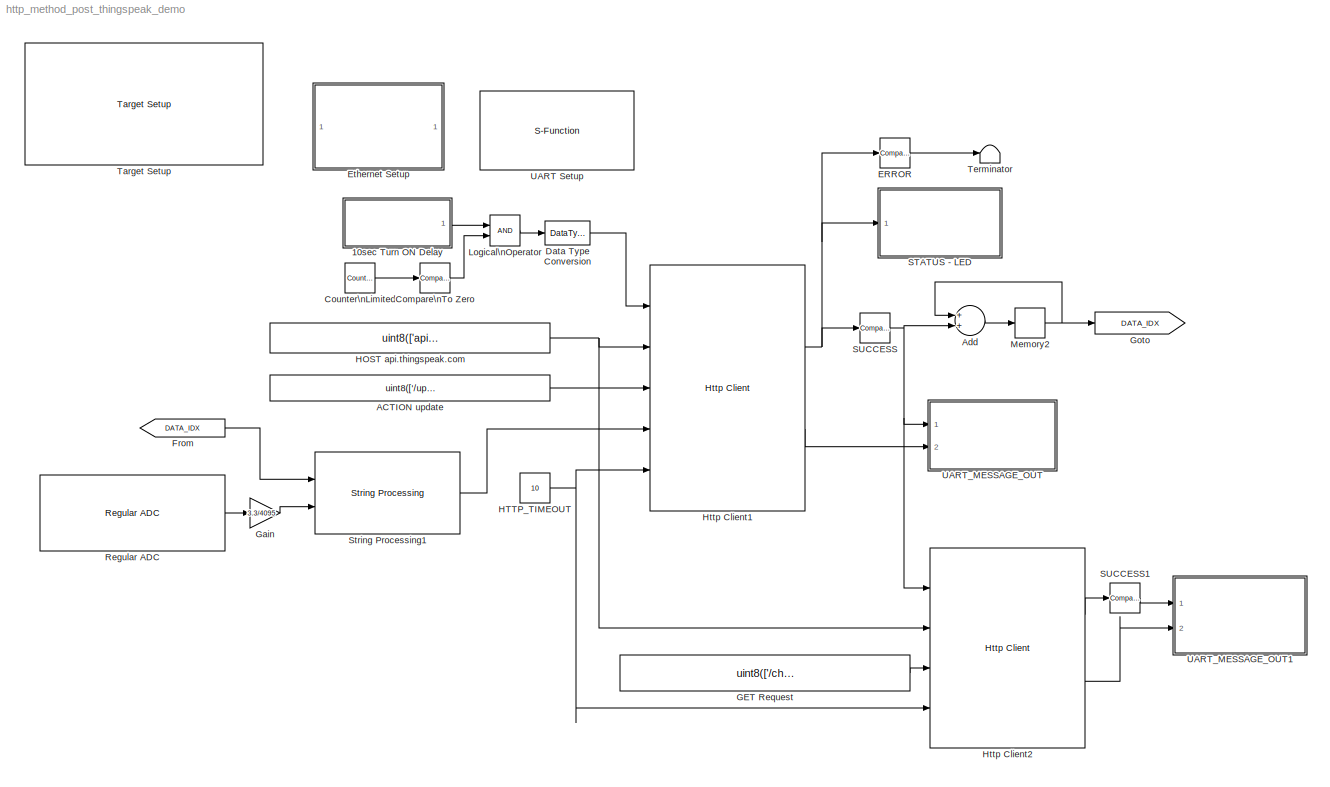
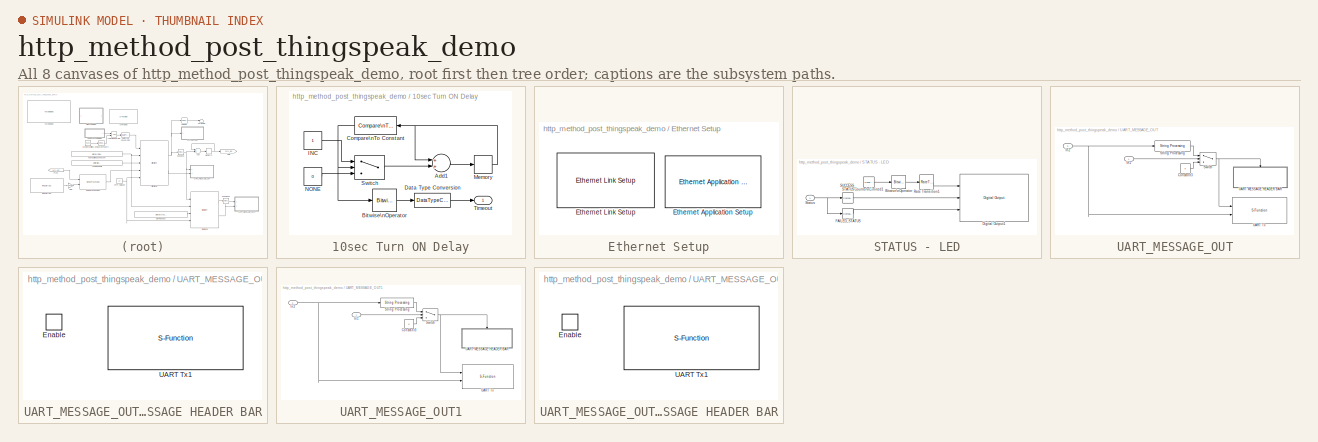
[diagram: thumbnail index - all 8 canvases of the model, root first then tree order]
MODEL http_method_post_thingspeak_demo
KIND model
CONFIG PreLoadFcn = waijung.modelPreload; % Required for working with Waijung Blockset. Do not remove.
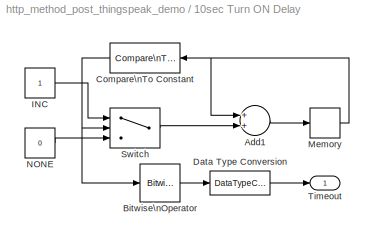
BLOCK [SubSystem] 10sec Turn ON Delay
  FunctionWithSeparateData = off
  MaskHideContents = off
  MinAlgLoopOccurrences = off
  Opaque = off
  Ports = [0, 1]
  PropExecContextOutsideSubsystem = off
  RTWSystemCode = Auto
  RequestExecContextInheritance = off
BLOCK [Sum] 10sec Turn ON Delay/Add1
  InputSameDT = off
  OutDataTypeMode = Inherit via internal rule
  OutDataTypeStr = Inherit: Inherit via internal rule
  Ports = [2, 1]
  SaturateOnIntegerOverflow = off
BLOCK [Reference] 10sec Turn ON Delay/Bitwise\nOperator  REF=simulink/Logic and Bit\nOperations/Bitwise\nOperator
  BitMask = bin2dec('11011001')
  BitMaskRealWorld = Stored Integer
  NumInputPorts = 1
  Ports = [1, 1]
  SourceBlock = simulink/Logic and Bit\nOperations/Bitwise\nOperator
  SourceType = Bitwise Operator
  UseBitMask = off
  logicop = NOT
BLOCK [Reference] 10sec Turn ON Delay/Compare\nTo Constant  REF=simulink/Logic and Bit\nOperations/Compare\nTo Constant
  FunctionWithSeparateData = off
  LogicOutDataTypeMode = uint8
  Ports = [1, 1]
  RTWMemSecDataConstants = Inherit from model
  RTWMemSecDataInternal = Inherit from model
  RTWMemSecDataParameters = Inherit from model
  RTWMemSecFuncExecute = Inherit from model
  RTWMemSecFuncInitTerm = Inherit from model
  ShowPortLabels = FromPortIcon
  SourceBlock = simulink/Logic and Bit\nOperations/Compare\nTo Constant
  SourceType = Compare To Constant
  SystemSampleTime = -1
  ZeroCross = on
  const = 1000
  relop = <
BLOCK [DataTypeConversion] 10sec Turn ON Delay/Data Type Conversion
  OutDataTypeMode = uint8
  OutDataTypeStr = uint8
  RndMeth = Floor
  SaturateOnIntegerOverflow = off
BLOCK [Constant] 10sec Turn ON Delay/INC
  OutDataTypeMode = int32
  OutDataTypeStr = int32
  SampleTime = -1
BLOCK [Memory] 10sec Turn ON Delay/Memory
  InheritSampleTime = on
  LinearizeAsDelay = on
  LinearizeMemory = on
BLOCK [Constant] 10sec Turn ON Delay/NONE
  OutDataTypeMode = int32
  OutDataTypeStr = int32
  SampleTime = -1
  Value = 0
BLOCK [Switch] 10sec Turn ON Delay/Switch
  Criteria = u2 ~= 0
  InputSameDT = off
  SaturateOnIntegerOverflow = off
BLOCK [Outport] 10sec Turn ON Delay/Timeout
  IconDisplay = Port number
BLOCK [Constant] ACTION update
  SampleTime = -1
  Value = uint8(['/update' char(0)])
BLOCK [Sum] Add
  InputSameDT = off
  OutDataTypeMode = Inherit via internal rule
  OutDataTypeStr = Inherit: Inherit via internal rule
  Ports = [2, 1]
  SaturateOnIntegerOverflow = off
BLOCK [Reference] Compare\nTo Zero  REF=simulink/Logic and Bit\nOperations/Compare\nTo Zero
  FunctionWithSeparateData = off
  LogicOutDataTypeMode = uint8
  Ports = [1, 1]
  RTWMemSecDataConstants = Inherit from model
  RTWMemSecDataInternal = Inherit from model
  RTWMemSecDataParameters = Inherit from model
  RTWMemSecFuncExecute = Inherit from model
  RTWMemSecFuncInitTerm = Inherit from model
  ShowPortLabels = FromPortIcon
  SourceBlock = simulink/Logic and Bit\nOperations/Compare\nTo Zero
  SourceType = Compare To Zero
  SystemSampleTime = -1
  ZeroCross = on
  relop = ==
BLOCK [Reference] Counter\nLimited  REF=simulink/Sources/Counter\nLimited
  FunctionWithSeparateData = off
  Ports = [0, 1]
  RTWMemSecDataConstants = Inherit from model
  RTWMemSecDataInternal = Inherit from model
  RTWMemSecDataParameters = Inherit from model
  RTWMemSecFuncExecute = Inherit from model
  RTWMemSecFuncInitTerm = Inherit from model
  ShowPortLabels = FromPortIcon
  SourceBlock = simulink/Sources/Counter\nLimited
  SourceType = Counter Limited
  SystemSampleTime = -1
  tsamp = -1
  uplimit = 499
BLOCK [DataTypeConversion] Data Type Conversion
  OutDataTypeMode = uint8
  OutDataTypeStr = uint8
  RndMeth = Floor
  SaturateOnIntegerOverflow = off
BLOCK [Reference] ERROR  REF=simulink/Logic and Bit\nOperations/Compare\nTo Constant
  FunctionWithSeparateData = off
  LogicOutDataTypeMode = uint8
  Ports = [1, 1]
  RTWMemSecDataConstants = Inherit from model
  RTWMemSecDataInternal = Inherit from model
  RTWMemSecDataParameters = Inherit from model
  RTWMemSecFuncExecute = Inherit from model
  RTWMemSecFuncInitTerm = Inherit from model
  ShowPortLabels = FromPortIcon
  SourceBlock = simulink/Logic and Bit\nOperations/Compare\nTo Constant
  SourceType = Compare To Constant
  SystemSampleTime = -1
  ZeroCross = on
  const = 4
  relop = >=
BLOCK [SubSystem] Ethernet Setup
  FunctionWithSeparateData = off
  MaskHideContents = off
  MinAlgLoopOccurrences = off
  Opaque = off
  Ports = []
  PropExecContextOutsideSubsystem = off
  RTWSystemCode = Auto
  RequestExecContextInheritance = off
BLOCK [Reference] Ethernet Setup/Ethernet Application Setup  REF=waijung_webserver/Ethernet Application Setup
  Ports = []
  SourceBlock = waijung_webserver/Ethernet Application Setup
  SourceType = waijung_ethernet_app
  blockid = EthernetSetupEthernetApplicationSetup
  compat = 0
  conf = Setup
  dhcp = off
  gateway = 192.168.1.1
  inputportlabel = {}
  inputporttype = []
  inputportwidth = []
  ipaddress = 192.168.1.42
  macaddress = 02-00-00-00-00-00
  netmask = 255.255.255.0
  optionstring = [\"Dummy\",\"192\",\"168\",\"1\",\"42\",\"255\",\"255\",\"255\",\"0\",\"192\",\"168\",\"1\",\"1\",\"02\",\"00\",\"00\",\"00\",\"00\",\"00\",\"off\",\"250\"]
  outputportlabel = {}
  outputporttype = []
  outputportwidth = []
  portpinstr = 0
  sampletime = -1
  timerscaler = 250
BLOCK [Reference] Ethernet Setup/Ethernet Link Setup  REF=waijung_webserver/Ethernet Link Setup
  Ports = []
  SourceBlock = waijung_webserver/Ethernet Link Setup
  SourceType = waijung_ethernet_inf
  blockid = EthernetSetupEthernetLinkSetup
  chipaddress = 0
  compat = 0
  conf = Setup
  inputportlabel = {}
  inputporttype = []
  inputportwidth = []
  interfacepin = Manual
  optionstring = [\"xxx\",\"on\",\"on\",\"on\",\"off\",\"off\",\"off\",\"on\",\"off\",\"off\",\"off\",\"on\",\"on\",\"off\",\"on\",\"off\",\"off\",\"off\",\"off\",\"off\",\"on\",\"on\",\"on\",\"on\",\"off\",\"off\",\"on\",\"on\",\"A\",\"0\",\"A\",\"1\",\"A\",\"2\",\"A\",\"3\",\"A\",\"7\",\"B\",\"0\",\"B\",\"1\",\"N\",\"ot used\",\"E\",\"2\",\"B\",\"10\",\"G\",\"11\",\"G\",\"13\",\"B\",\"13\",\"C\",\"1\",\"C\",\"2\...<+53ch>
  outputportlabel = {}
  outputporttype = []
  outputportwidth = []
  pin_col = A3
  pin_crs = A0
  pin_dv = A7
  pin_mdc = C1
  pin_mdio = A2
  pin_pps = Not used
  pin_rxclk = A1
  pin_rxd0 = C4
  pin_rxd1 = C5
  pin_rxd2 = B0
  pin_rxd3 = B1
  pin_rxer = B10
  pin_txclk = C3
  pin_txd0 = G13
  pin_txd1 = B13
  pin_txd2 = C2
  pin_txd3 = E2
  pin_txen = G11
  portpinstr = A1,A2,A7,G11,G13,B13,C1,C4,C5,
  sampletime = -1
  wj_interfacetype = RMII
BLOCK [From] From
  GotoTag = DATA_IDX
BLOCK [Constant] GET Request
  SampleTime = -1
  Value = uint8(['/channels/236170/feeds.csv?results=5' char(0)])
BLOCK [Gain] Gain
  Gain = 3.3/4095
  OutDataTypeMode = Inherit via internal rule
  OutDataTypeStr = Inherit: Inherit via internal rule
  ParamDataTypeStr = Inherit: Inherit via internal rule
  ParameterDataTypeMode = Inherit via internal rule
  SaturateOnIntegerOverflow = off
BLOCK [Goto] Goto
  GotoTag = DATA_IDX
  TagVisibility = local
BLOCK [Constant] HOST api.thingspeak.com
  SampleTime = -1
  Value = uint8(['api.thingspeak.com' char(0)])
BLOCK [Constant] HTTP_TIMEOUT
  OutDataTypeMode = uint32
  OutDataTypeStr = uint32
  SampleTime = -1
  Value = 10
BLOCK [Reference] Http Client1  REF=waijung_http_client_lib/Http Client
  Ports = [5, 2]
  SourceBlock = waijung_http_client_lib/Http Client
  SourceType = waijung_http_client
  beginpattern = ''
  blockid = HttpClient1
  compat = 0
  conf = HttpPOST
  contenttype = 'application/x-www-form-urlencoded'
  httpresponse = on
  httpresponsesize = 1024
  inputportlabel = {'Trig','Host','Action','Content','Timeout(sec)'}
  inputporttype = [-1 3 3 3 7]
  inputportwidth = [1 -1 -1 -1 1]
  optionstring = [\"on\",\"application/x-www-form-urlencoded\"]
  outputportlabel = {'Status','Response'}
  outputporttype = [3 3]
  outputportwidth = [1 1024]
  portpinstr = 0
  sampletime = 0.01
  stringparam1 = 0
  stringparam2 = 0
  terminatorpattern = ''
BLOCK [Reference] Http Client2  REF=waijung_http_client_lib/Http Client
  Ports = [4, 2]
  SourceBlock = waijung_http_client_lib/Http Client
  SourceType = waijung_http_client
  beginpattern = ''
  blockid = HttpClient2
  compat = 0
  conf = HttpGET
  contenttype = 'application/x-www-form-urlencoded'
  httpresponse = on
  httpresponsesize = 1024
  inputportlabel = {'Trig','Host','Request','Timeout(sec)'}
  inputporttype = [-1 3 3 7]
  inputportwidth = [1 -1 -1 1]
  optionstring = [\"on\",\"application/x-www-form-urlencoded\"]
  outputportlabel = {'Status','Response'}
  outputporttype = [3 3]
  outputportwidth = [1 1024]
  portpinstr = 0
  sampletime = 0.01
  stringparam1 = 0
  stringparam2 = 0
  terminatorpattern = ''
BLOCK [Logic] Logical\nOperator
  AllPortsSameDT = off
  OutDataTypeMode = boolean
  OutDataTypeStr = boolean
  Ports = [2, 1]
BLOCK [Memory] Memory2
  InheritSampleTime = on
  LinearizeAsDelay = on
  LinearizeMemory = on
BLOCK [Reference] Regular ADC  REF=stm32f4_adc_lib/Regular ADC
  Ports = [0, 1]
  SourceBlock = stm32f4_adc_lib/Regular ADC
  SourceType = stm32f4_regular_adc
  adcmodule = 1
  blockid = RegularADC
  chsamplingtime = Auto
  chsamplingtimestr = ADC_SampleTime_480Cycles
  cinputportlabel = 0
  coutputportlabel = Out1, Out2
  enablecustomportlabel = off
  outputdatatype = Single
  pinstr = GPIO_Pin_9
  prescaler = 2
  prescalerstr = ADC_Prescaler_Div2
  read_an0 = off
  read_an1 = off
  read_an10 = off
  read_an11 = off
  read_an12 = off
  read_an13 = off
  read_an14 = off
  read_an15 = off
  read_an16 = off
  read_an17 = off
  read_an18 = off
  read_an2 = off
  read_an3 = off
  read_an4 = off
  read_an5 = off
  read_an6 = off
  read_an7 = off
  read_an8 = off
  read_an9 = on
  sampletime = -1
  usedpinarray = [0  0  0  0  0  0  0  0  0  1  0  0  0  0  0  0  0  0  0]
  usedpinidarray = [1]
  usedpinidcount = 1
  usedportidarray = [1]
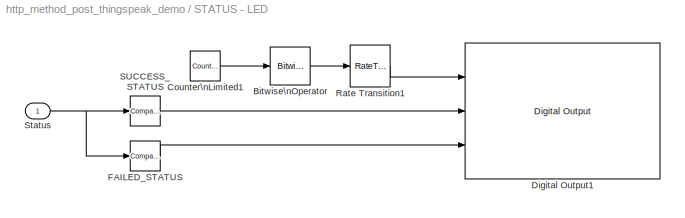
BLOCK [SubSystem] STATUS - LED
  FunctionWithSeparateData = off
  MaskHideContents = off
  MinAlgLoopOccurrences = off
  Opaque = off
  Ports = [1]
  PropExecContextOutsideSubsystem = off
  RTWSystemCode = Auto
  RequestExecContextInheritance = off
BLOCK [Reference] STATUS - LED/Bitwise\nOperator  REF=simulink/Logic and Bit\nOperations/Bitwise\nOperator
  BitMask = 1
  BitMaskRealWorld = Stored Integer
  NumInputPorts = 1
  Ports = [1, 1]
  SourceBlock = simulink/Logic and Bit\nOperations/Bitwise\nOperator
  SourceType = Bitwise Operator
  UseBitMask = on
  logicop = AND
BLOCK [Reference] STATUS - LED/Counter\nLimited1  REF=simulink/Sources/Counter\nLimited
  FunctionWithSeparateData = off
  Ports = [0, 1]
  RTWMemSecDataConstants = Inherit from model
  RTWMemSecDataInternal = Inherit from model
  RTWMemSecDataParameters = Inherit from model
  RTWMemSecFuncExecute = Inherit from model
  RTWMemSecFuncInitTerm = Inherit from model
  ShowPortLabels = FromPortIcon
  SourceBlock = simulink/Sources/Counter\nLimited
  SourceType = Counter Limited
  SystemSampleTime = -1
  tsamp = 0.1
  uplimit = 99
BLOCK [Reference] STATUS - LED/Digital Output1  REF=stm32f4_io_lib/Digital Output
  Ports = [3]
  SourceBlock = stm32f4_io_lib/Digital Output
  SourceType = stm32f4_digital_output
  bitbandingstr = \n#define STATUSLEDDigitalOutput1_B0 Peripheral_BB(GPIOB->ODR, 0)  /* Output pin */\n#define STATUSLEDDigitalOutput1_B7 Peripheral_BB(GPIOB->ODR, 7)  /* Output pin */\n#define STATUSLEDDigitalOutput1_B14 Peripheral_BB(GPIOB->ODR, 14)  /* Output pin */
  blockid = STATUSLEDDigitalOutput1
  cinputportlabel = In1, In2
  coutputportlabel = 0
  enablecustomportlabel = off
  globalinit = off
  pinstr = GPIO_Pin_0 | GPIO_Pin_7 | GPIO_Pin_14
  port = B
  porttype = Push Pull
  porttypestr = PP
  sampletime = -1
  sampletimestr = 0.01
  speed = 100
  use_bitband = on
  use_pin0 = on
  use_pin1 = off
  use_pin10 = off
  use_pin11 = off
  use_pin12 = off
  use_pin13 = off
  use_pin14 = on
  use_pin15 = off
  use_pin2 = off
  use_pin3 = off
  use_pin4 = off
  use_pin5 = off
  use_pin6 = off
  use_pin7 = on
  use_pin8 = off
  use_pin9 = off
  usedpinarray = [1  0  0  0  0  0  0  1  0  0  0  0  0  0  1  0]
BLOCK [Reference] STATUS - LED/FAILED_STATUS  REF=simulink/Logic and Bit\nOperations/Compare\nTo Constant
  FunctionWithSeparateData = off
  LogicOutDataTypeMode = uint8
  Ports = [1, 1]
  RTWMemSecDataConstants = Inherit from model
  RTWMemSecDataInternal = Inherit from model
  RTWMemSecDataParameters = Inherit from model
  RTWMemSecFuncExecute = Inherit from model
  RTWMemSecFuncInitTerm = Inherit from model
  ShowPortLabels = FromPortIcon
  SourceBlock = simulink/Logic and Bit\nOperations/Compare\nTo Constant
  SourceType = Compare To Constant
  SystemSampleTime = -1
  ZeroCross = on
  const = 3
  relop = >
BLOCK [RateTransition] STATUS - LED/Rate Transition1
BLOCK [Reference] STATUS - LED/SUCCESS_STATUS  REF=simulink/Logic and Bit\nOperations/Compare\nTo Constant
  FunctionWithSeparateData = off
  LogicOutDataTypeMode = uint8
  Ports = [1, 1]
  RTWMemSecDataConstants = Inherit from model
  RTWMemSecDataInternal = Inherit from model
  RTWMemSecDataParameters = Inherit from model
  RTWMemSecFuncExecute = Inherit from model
  RTWMemSecFuncInitTerm = Inherit from model
  ShowPortLabels = FromPortIcon
  SourceBlock = simulink/Logic and Bit\nOperations/Compare\nTo Constant
  SourceType = Compare To Constant
  SystemSampleTime = -1
  ZeroCross = on
  const = 3
  relop = ==
BLOCK [Inport] STATUS - LED/Status
  IconDisplay = Port number
BLOCK [Reference] SUCCESS  REF=simulink/Logic and Bit\nOperations/Compare\nTo Constant
  FunctionWithSeparateData = off
  LogicOutDataTypeMode = uint8
  Ports = [1, 1]
  RTWMemSecDataConstants = Inherit from model
  RTWMemSecDataInternal = Inherit from model
  RTWMemSecDataParameters = Inherit from model
  RTWMemSecFuncExecute = Inherit from model
  RTWMemSecFuncInitTerm = Inherit from model
  ShowPortLabels = FromPortIcon
  SourceBlock = simulink/Logic and Bit\nOperations/Compare\nTo Constant
  SourceType = Compare To Constant
  SystemSampleTime = -1
  ZeroCross = on
  const = 3
  relop = ==
BLOCK [Reference] SUCCESS1  REF=simulink/Logic and Bit\nOperations/Compare\nTo Constant
  FunctionWithSeparateData = off
  LogicOutDataTypeMode = uint8
  Ports = [1, 1]
  RTWMemSecDataConstants = Inherit from model
  RTWMemSecDataInternal = Inherit from model
  RTWMemSecDataParameters = Inherit from model
  RTWMemSecFuncExecute = Inherit from model
  RTWMemSecFuncInitTerm = Inherit from model
  ShowPortLabels = FromPortIcon
  SourceBlock = simulink/Logic and Bit\nOperations/Compare\nTo Constant
  SourceType = Compare To Constant
  SystemSampleTime = -1
  ZeroCross = on
  const = 3
  relop = ==
BLOCK [Reference] String Processing1  REF=waijung_string_manipulate/String Processing
  Ports = [2, 1]
  SourceBlock = waijung_string_manipulate/String Processing
  SourceType = waijung_string_processing_callback
  begindelimiter = ''
  blockid = StringProcessing1
  buffersize = 512
  compat = 0
  conf = processing
  datatypestring = [\"uint32_t\",\"float\"]
  enablestatus = off
  enddelimiter = ''
  inputportlabel = {'%u','%f'}
  inputporttype = [-1 -1]
  inputportwidth = [1 1]
  optionstring = []
  outputportlabel = {'Output'}
  outputporttype = [3]
  outputportwidth = [512]
  portpinstr = 0
  sampletime = -1
  stringformat = 'api_key=LLYHIMHACKG50HOH&field1=%u&field2=%1.2f'
  stringfunction = sprintf
BLOCK [Reference] Target Setup  REF=stm32f4_device_config_lib/Target Setup
  Ports = []
  Priority = 100
  SourceBlock = stm32f4_device_config_lib/Target Setup
  SourceType = stm32f4_target_setup
  assemblercontrolstr = $(patsubst %, -I%, .) -mcpu=cortex-m4 -mthumb -mthumb-interwork -mfloat-abi=hard -mfpu=fpv4-sp-d16 -ffast-math -Wall -Wextra -Ofast -Wa,-amhls=$(<:.s=.lst) -D__STACK_SIZE=$(STACK_SIZE) -D__HEAP_SIZE=$(HEAP_SIZE)
  blockid = TargetSetup
  clockconfig = HSEOSC-8MHz
  compiler = GNU ARM
  compilercontrolstr = $(patsubst %, -I%, .) -mcpu=cortex-m4 -mthumb -mthumb-interwork -mfloat-abi=hard -mfpu=fpv4-sp-d16 -ffast-math -Wall -Wextra -Ofast
  editctrlstr = on
  enableautocompiledownload = on
  execprofile = None
  flashlength = 2048k
  flashorigin = 0x8000000
  fullchiperase = off
  hclk = 180000000
  heapsize = 0x2000
  hseval = 8000000
  lastprofileruart = 3
  linkercontrolstr = -T$(LD_SCRIPT) -g -Wl,-Map=$(MAP),--cref,--no-warn-mismatch -mcpu=cortex-m4 -mthumb -mthumb-interwork -mfloat-abi=hard -mfpu=fpv4-sp-d16 -specs=nosys.specs
  manualsetsampletime = off
  mcu = STM32F429ZI (LQFP144)
  mcustr = STM32F429ZI
  previous_compiler = GNU ARM
  profilerbaud = 500000
  profilerinitstr = 0.01,180000000,1800000,500000,0
  profilertxpin = D8
  profileruart = 3
  programmerinterface = ST-Link
  ramlength = 192k
  ramorigin = 0x20000000
  runafterdownload = on
  sampletime = 0.01
  showmemoryconfiguration = off
  stacksize = 0x2000
  system_stm32f4xx_c_path = <path>
  systickreloadvalue = 1800000
  useextram = off
BLOCK [Terminator] Terminator
BLOCK [S-Function] UART Setup
  EnableBusSupport = off
  FunctionName = stm32f4_usart
  MaskCallbackString = stm32f4_usart_callback('configuration');|stm32f4_usart_callback('uartmodule');|stm32f4_usart_callback('baudrate');||||||stm32f4_usart_callback('flowcontrol');|||stm32f4_usart_callback('advanceoptions');|||stm32f4_usart_callback('transfer');|stm32f4_usart_callback('packetmode');|stm32f4_usart_callback('binheader');|stm32f4_usart_callback('binterminator');|stm32f4_usart_callback('porttype');|stm32f4...<+572ch>  <repeated x5 — deduplicated; at blocks: UART Setup, UART Tx1, UART Tx>
  MaskDescription = Default STM32F4DISCOVERY + aMG F4 Connect 2 + aMG USB Converter N2 settings use\n\nUSART3, Tx D8, Rx D9 and USB Serial Converter A.
  MaskDisplay = text(0.5, 0.5, 'Module: USART3_Setup\\nBaud (Bps): 115200\\nDMA Buffer: 1024/512\\nTx/Rx Pin: D8/D9','ver','middle','hor','center');
  MaskEnableString = on,on,on,on,on,on,on,on,on,off,off,on,on,on,on,on,on,on,on,on,on,on,on,on,on,on,on,on,on,on,on,on,on,on,on,on,on,on,on,off,off,on,on
  MaskHelp = web(fullfile(waijungdocroot,'stm32f4_usart_setup.htm'), '-browser')
  MaskIconFrame = on
  MaskIconOpaque = on
  MaskIconRotate = none
  MaskIconUnits = normalized
  MaskInitialization = stm32f4_usart_callback('init');
  MaskPortRotate = default
  MaskPromptString = Configuration|UART Module|Baud rate (bps)|Data bits|Parity|Stop bit|Tx Pin|Rx Pin|Hardware flow control|HW Flow control, CTS Pin|HW Flow control, RTS Pin|Advance options|Rx buffer size (bytes)|Tx buffer size (bytes)|Transfer|Packet mode|Binary header (example: '7E 7E')|Binary terminator (example: '03 03')|Number of data port, type DOUBLE|Number of data port, type SINGLE|Number of data port, type I...<+457ch>  <repeated x5 — deduplicated; at blocks: UART Setup, UART Tx1, UART Tx>
  MaskSelfModifiable = on
  MaskStyleString = popup(Setup|Tx|Rx),popup(1|2|3|4|5|6),edit,popup(8),popup(No|Odd|Even),popup(0.5|1|1.5|2),popup(Not used|B10|C10|D8),popup(Not used|B11|C11|D9),popup(None|RTS|CTS|RTS/CTS),popup(Not used|B13|D11),popup(Not used|B14|D12),checkbox,popup(16|32|64|128|256|512|1024|2048),popup(16|32|64|128|256|512|1024|2048),popup(Blocking|Non-Blocking),popup(Ascii|Binary|String Buffer),edit,edit,edit,edit,edit,edit,ed...<+309ch>
  MaskTabNameString = ,,,,,,,,,,,,,,,,,,,,,,,,,,,,,,,,,,,,,,,,,,
  MaskToolTipString = on,on,on,on,on,on,on,on,on,on,on,on,on,on,on,on,on,on,on,on,on,on,on,on,on,on,on,on,on,on,on,on,on,on,on,on,on,on,on,on,on,on,on
  MaskTunableValueString = off,off,off,off,off,off,off,off,off,off,off,off,off,off,off,off,off,off,off,off,off,off,off,off,off,off,off,off,off,off,off,off,off,off,off,off,off,off,off,off,off,off,off
  MaskType = stm32f4_usart
  MaskValueString = Setup|3|115200|8|No|1|D8|D9|None|Not used|Not used|on|512|1024|Blocking|Ascii|'7E 7E'|'03 03'|1|0|1|0|0|0|0|0|'%d,%f'|CR (0x0D - \"\\\\\\\\r\")|CR (0x0D - \"\\\\\\\\r\")|<empty>||[0]|[0]|[0]|[0]|0|''|[0]|-1|0.01|UARTSetup|[ \"dummy\", \"1\", \"D\", \"8\", \"1\", \"D\", \"9\", \"0\", \"*\", \"*\", \"0\", \"*\", \"*\", \"1\", \"4\", \"3\", \"1\", \"4\", \"1\", \"1024\", \"512\", \"1\", \"3\", \"1152...<+51ch>
  MaskVarAliasString = ,,,,,,,,,,,,,,,,,,,,,,,,,,,,,,,,,,,,,,,,,,
  MaskVariables = configuration=&1;uartmodule=&2;baudrate=@3;databits=@4;parity=&5;stopbit=&6;remaptxpin=&7;remaprxpin=&8;flowcontrol=&9;remapctspin=&10;remaprtspin=&11;advanceoptions=@12;rxbuffersize=@13;txbuffersize=@14;transfer=&15;packetmode=&16;binheader=&17;binterminator=&18;porttype_double=@19;porttype_single=@20;porttype_int8=@21;porttype_uint8=@22;porttype_int16=@23;porttype_uint16=@24;porttype_int32=@25;p...<+306ch>  <repeated x5 — deduplicated; at blocks: UART Setup, UART Tx1, UART Tx>
  MaskVisibilityString = off,on,on,on,on,on,on,on,on,on,on,on,on,on,off,off,off,off,off,off,off,off,off,off,off,off,off,off,off,off,off,off,off,off,off,off,off,off,off,off,off,off,off
  Parameters = configuration,uartmodule,transfer,baudrate,inputtype,outputtype,confstr,binheaderarray,binterminatorarray,asciiheader,asciiterminator,bindatalength,packetmode,varname,sampletime,sampletimestr,blockid  <repeated x5 — deduplicated; at blocks: UART Setup, UART Tx1, UART Tx>
  Ports = []
  Priority = 1
BLOCK [SubSystem] UART_MESSAGE_OUT
  FunctionWithSeparateData = off
  MaskHideContents = off
  MinAlgLoopOccurrences = off
  Opaque = off
  Ports = [2]
  PropExecContextOutsideSubsystem = off
  RTWSystemCode = Auto
  RequestExecContextInheritance = off
BLOCK [Constant] UART_MESSAGE_OUT/Constant3
  OutDataTypeMode = uint16
  OutDataTypeStr = uint16
  SampleTime = -1
  Value = 0
BLOCK [Inport] UART_MESSAGE_OUT/In1
  IconDisplay = Port number
BLOCK [Inport] UART_MESSAGE_OUT/In2
  IconDisplay = Port number
  Port = 2
BLOCK [Reference] UART_MESSAGE_OUT/String Processing  REF=waijung_string_manipulate/String Processing
  Ports = [1, 1]
  SourceBlock = waijung_string_manipulate/String Processing
  SourceType = waijung_string_processing_callback
  begindelimiter = ''
  blockid = UART_MESSAGE_OUTStringProcessing
  buffersize = 28
  compat = 0
  conf = processing
  datatypestring = []
  enablestatus = off
  enddelimiter = ''
  inputportlabel = {'Input'}
  inputporttype = [3]
  inputportwidth = [-1]
  optionstring = []
  outputportlabel = {'Length'}
  outputporttype = [7]
  outputportwidth = [1]
  portpinstr = 0
  sampletime = -1
  stringformat = 'value=%d,%f'
  stringfunction = strlen
BLOCK [Switch] UART_MESSAGE_OUT/Switch
  Criteria = u2 ~= 0
  InputSameDT = off
  SaturateOnIntegerOverflow = off
BLOCK [SubSystem] UART_MESSAGE_OUT/UART MESSAGE HEADER BAR
  FunctionWithSeparateData = off
  MaskHideContents = off
  MinAlgLoopOccurrences = off
  Opaque = off
  Ports = [0, 0, 1]
  PropExecContextOutsideSubsystem = off
  RTWSystemCode = Auto
  RequestExecContextInheritance = off
BLOCK [EnablePort] UART_MESSAGE_OUT/UART MESSAGE HEADER BAR/Enable
  Ports = []
BLOCK [S-Function] UART_MESSAGE_OUT/UART MESSAGE HEADER BAR/UART Tx1
  EnableBusSupport = off
  FunctionName = stm32f4_usart
  MaskDescription = Data type for Ascii format\n%u, %i, %d, %o, %x: uint32\n%e, %g, %f: single\n%c: int8
  MaskDisplay = text(0.95, 0.5, 'Module: USART3_Tx\\nPacket: Ascii\\nTransfer: Blocking\\nTs (sec): 0.01','ver','middle','hor','right');
  MaskEnableString = on,on,on,on,on,on,on,on,on,off,off,on,on,on,on,on,on,on,on,on,on,on,on,on,on,on,on,on,on,on,on,on,on,on,on,on,on,on,on,off,off,on,on
  MaskHelp = web(fullfile(waijungdocroot,'stm32f4_usart_tx.htm'), '-browser')
  MaskIconFrame = on
  MaskIconOpaque = on
  MaskIconRotate = none
  MaskIconUnits = normalized
  MaskInitialization = stm32f4_usart_callback('init');
  MaskPortRotate = default
  MaskSelfModifiable = on
  MaskStyleString = popup(Setup|Tx|Rx),popup(1|2|3|4|5|6),edit,popup(8),popup(No|Odd|Even),popup(0.5|1|1.5|2),popup(Not used|A9|B6),popup(Not used|A10|B7),popup(None|RTS|CTS|RTS/CTS),popup(Not used|A11),popup(Not used|A12),checkbox,popup(16|32|64|128|256|512|1024|2048),popup(16|32|64|128|256|512|1024|2048),popup(Blocking|Non-Blocking),popup(Ascii|Binary|Binary Vector|String Buffer|Raw Buffer),edit,edit,edit,edit,edit...<+317ch>  <repeated x4 — deduplicated; at blocks: UART Tx1, UART Tx>
  MaskTabNameString = ,,,,,,,,,,,,,,,,,,,,,,,,,,,,,,,,,,,,,,,,,,
  MaskToolTipString = on,on,on,on,on,on,on,on,on,on,on,on,on,on,on,on,on,on,on,on,on,on,on,on,on,on,on,on,on,on,on,on,on,on,on,on,on,on,on,on,on,on,on
  MaskTunableValueString = off,off,off,off,off,off,off,off,off,off,off,off,off,off,off,off,off,off,off,off,off,off,off,off,off,off,off,off,off,off,off,off,off,off,off,off,off,off,off,off,off,off,off
  MaskType = stm32f4_usart
  MaskValueString = Tx|3|115200|8|No|1|Not used|Not used|None|Not used|Not used|off|512|512|Blocking|Ascii|'7E 7E'|'03 03'|1|0|1|0|0|0|0|0|'\\r\\n=========== POST ===========\\r\\n'|CR (0x0D - \"\\\\\\\\r\")|CR (0x0D - \"\\\\\\\\r\")|<empty>||[0 ]|[0]|[0]|[0]|0|'\\r\\n=========== POST ===========<path>'|[2 13 10]|-1|0.01|UART_MESSAGE_OUTUARTMESSAGEHEADERBARUARTTx1|[ \"dummy\", \"0\", \"*\", \"*\", \"0\", \"*\",...<+181ch>
  MaskVarAliasString = ,,,,,,,,,,,,,,,,,,,,,,,,,,,,,,,,,,,,,,,,,,
  MaskVisibilityString = off,on,off,off,off,off,off,off,off,off,off,off,off,off,on,on,off,off,off,off,off,off,off,off,off,off,on,off,on,off,off,off,off,off,off,off,off,off,on,off,off,off,off
  Ports = []
  Priority = 0
BLOCK [S-Function] UART_MESSAGE_OUT/UART Tx
  EnableBusSupport = off
  FunctionName = stm32f4_usart
  MaskDescription = Data type for Ascii format\n%u, %i, %d, %o, %x: uint32\n%e, %g, %f: single\n%c: int8
  MaskDisplay = text(0.95, 0.5, 'Module: USART3_Tx\\nPacket: Raw Buffer\\nTransfer: Blocking\\nTs (sec): 0.01','ver','middle','hor','right'); port_label('input', 1,'tx_len'); port_label('input', 2,'uint8(1024)');
  MaskEnableString = on,on,on,on,on,on,on,on,on,off,off,on,on,on,on,on,on,on,on,on,on,on,on,on,on,on,on,on,on,on,on,on,on,on,on,on,on,on,on,off,off,on,on
  MaskHelp = web(fullfile(waijungdocroot,'stm32f4_usart_tx.htm'), '-browser')
  MaskIconFrame = on
  MaskIconOpaque = on
  MaskIconRotate = none
  MaskIconUnits = normalized
  MaskInitialization = stm32f4_usart_callback('init');
  MaskPortRotate = default
  MaskSelfModifiable = on
  MaskTabNameString = ,,,,,,,,,,,,,,,,,,,,,,,,,,,,,,,,,,,,,,,,,,
  MaskToolTipString = on,on,on,on,on,on,on,on,on,on,on,on,on,on,on,on,on,on,on,on,on,on,on,on,on,on,on,on,on,on,on,on,on,on,on,on,on,on,on,on,on,on,on
  MaskTunableValueString = off,off,off,off,off,off,off,off,off,off,off,off,off,off,off,off,off,off,off,off,off,off,off,off,off,off,off,off,off,off,off,off,off,off,off,off,off,off,off,off,off,off,off
  MaskType = stm32f4_usart
  MaskValueString = Tx|3|115200|8|No|1|Not used|Not used|None|Not used|Not used|off|512|512|Blocking|Raw Buffer|'7E 7E'|'03 03'|1|0|1|0|0|0|0|0|'value=%d,%f'|CR (0x0D - \"\\\\\\\\r\")|CR (0x0D - \"\\\\\\\\r\")|<empty>||[2  7 262147]|[0]|[0]|[0]|1024|'value=%d,%f\\r\\n'|[2 13 10]|-1|0.01|UART_MESSAGE_OUTUARTTx|[ \"dummy\", \"0\", \"*\", \"*\", \"0\", \"*\", \"*\", \"0\", \"*\", \"*\", \"0\", \"*\", \"*\", \"1\", \"4\"...<+119ch>
  MaskVarAliasString = ,,,,,,,,,,,,,,,,,,,,,,,,,,,,,,,,,,,,,,,,,,
  MaskVisibilityString = off,on,off,off,off,off,off,off,off,off,off,off,off,off,on,on,off,off,off,off,off,off,off,off,off,off,off,off,off,off,off,off,off,off,off,off,off,off,on,off,off,off,off
  Ports = [2]
  Priority = 1
BLOCK [SubSystem] UART_MESSAGE_OUT1
  FunctionWithSeparateData = off
  MaskHideContents = off
  MinAlgLoopOccurrences = off
  Opaque = off
  Ports = [2]
  PropExecContextOutsideSubsystem = off
  RTWSystemCode = Auto
  RequestExecContextInheritance = off
BLOCK [Constant] UART_MESSAGE_OUT1/Constant3
  OutDataTypeMode = uint16
  OutDataTypeStr = uint16
  SampleTime = -1
  Value = 0
BLOCK [Inport] UART_MESSAGE_OUT1/In1
  IconDisplay = Port number
BLOCK [Inport] UART_MESSAGE_OUT1/In2
  IconDisplay = Port number
  Port = 2
BLOCK [Reference] UART_MESSAGE_OUT1/String Processing  REF=waijung_string_manipulate/String Processing
  Ports = [1, 1]
  SourceBlock = waijung_string_manipulate/String Processing
  SourceType = waijung_string_processing_callback
  begindelimiter = ''
  blockid = UART_MESSAGE_OUT1StringProcessing
  buffersize = 28
  compat = 0
  conf = processing
  datatypestring = []
  enablestatus = off
  enddelimiter = ''
  inputportlabel = {'Input'}
  inputporttype = [3]
  inputportwidth = [-1]
  optionstring = []
  outputportlabel = {'Length'}
  outputporttype = [7]
  outputportwidth = [1]
  portpinstr = 0
  sampletime = -1
  stringformat = 'value=%d,%f'
  stringfunction = strlen
BLOCK [Switch] UART_MESSAGE_OUT1/Switch
  Criteria = u2 ~= 0
  InputSameDT = off
  SaturateOnIntegerOverflow = off
BLOCK [SubSystem] UART_MESSAGE_OUT1/UART MESSAGE HEADER BAR
  FunctionWithSeparateData = off
  MaskHideContents = off
  MinAlgLoopOccurrences = off
  Opaque = off
  Ports = [0, 0, 1]
  PropExecContextOutsideSubsystem = off
  RTWSystemCode = Auto
  RequestExecContextInheritance = off
BLOCK [EnablePort] UART_MESSAGE_OUT1/UART MESSAGE HEADER BAR/Enable
  Ports = []
BLOCK [S-Function] UART_MESSAGE_OUT1/UART MESSAGE HEADER BAR/UART Tx1
  EnableBusSupport = off
  FunctionName = stm32f4_usart
  MaskDescription = Data type for Ascii format\n%u, %i, %d, %o, %x: uint32\n%e, %g, %f: single\n%c: int8
  MaskDisplay = text(0.95, 0.5, 'Module: USART3_Tx\\nPacket: Ascii\\nTransfer: Blocking\\nTs (sec): 0.01','ver','middle','hor','right');
  MaskEnableString = on,on,on,on,on,on,on,on,on,off,off,on,on,on,on,on,on,on,on,on,on,on,on,on,on,on,on,on,on,on,on,on,on,on,on,on,on,on,on,off,off,on,on
  MaskHelp = web(fullfile(waijungdocroot,'stm32f4_usart_tx.htm'), '-browser')
  MaskIconFrame = on
  MaskIconOpaque = on
  MaskIconRotate = none
  MaskIconUnits = normalized
  MaskInitialization = stm32f4_usart_callback('init');
  MaskPortRotate = default
  MaskSelfModifiable = on
  MaskTabNameString = ,,,,,,,,,,,,,,,,,,,,,,,,,,,,,,,,,,,,,,,,,,
  MaskToolTipString = on,on,on,on,on,on,on,on,on,on,on,on,on,on,on,on,on,on,on,on,on,on,on,on,on,on,on,on,on,on,on,on,on,on,on,on,on,on,on,on,on,on,on
  MaskTunableValueString = off,off,off,off,off,off,off,off,off,off,off,off,off,off,off,off,off,off,off,off,off,off,off,off,off,off,off,off,off,off,off,off,off,off,off,off,off,off,off,off,off,off,off
  MaskType = stm32f4_usart
  MaskValueString = Tx|3|115200|8|No|1|Not used|Not used|None|Not used|Not used|off|512|512|Blocking|Ascii|'7E 7E'|'03 03'|1|0|1|0|0|0|0|0|'\\r\\n=========== GET ===========\\r\\n'|CR (0x0D - \"\\\\\\\\r\")|CR (0x0D - \"\\\\\\\\r\")|<empty>||[0 ]|[0]|[0]|[0]|0|'\\r\\n=========== GET ===========<path>'|[2 13 10]|-1|0.01|UART_MESSAGE_OUT1UARTMESSAGEHEADERBARUARTTx1|[ \"dummy\", \"0\", \"*\", \"*\", \"0\", \"*\", ...<+180ch>
  MaskVarAliasString = ,,,,,,,,,,,,,,,,,,,,,,,,,,,,,,,,,,,,,,,,,,
  MaskVisibilityString = off,on,off,off,off,off,off,off,off,off,off,off,off,off,on,on,off,off,off,off,off,off,off,off,off,off,on,off,on,off,off,off,off,off,off,off,off,off,on,off,off,off,off
  Ports = []
  Priority = 0
BLOCK [S-Function] UART_MESSAGE_OUT1/UART Tx
  EnableBusSupport = off
  FunctionName = stm32f4_usart
  MaskDescription = Data type for Ascii format\n%u, %i, %d, %o, %x: uint32\n%e, %g, %f: single\n%c: int8
  MaskDisplay = text(0.95, 0.5, 'Module: USART3_Tx\\nPacket: Raw Buffer\\nTransfer: Blocking\\nTs (sec): 0.01','ver','middle','hor','right'); port_label('input', 1,'tx_len'); port_label('input', 2,'uint8(1024)');
  MaskEnableString = on,on,on,on,on,on,on,on,on,off,off,on,on,on,on,on,on,on,on,on,on,on,on,on,on,on,on,on,on,on,on,on,on,on,on,on,on,on,on,off,off,on,on
  MaskHelp = web(fullfile(waijungdocroot,'stm32f4_usart_tx.htm'), '-browser')
  MaskIconFrame = on
  MaskIconOpaque = on
  MaskIconRotate = none
  MaskIconUnits = normalized
  MaskInitialization = stm32f4_usart_callback('init');
  MaskPortRotate = default
  MaskSelfModifiable = on
  MaskTabNameString = ,,,,,,,,,,,,,,,,,,,,,,,,,,,,,,,,,,,,,,,,,,
  MaskToolTipString = on,on,on,on,on,on,on,on,on,on,on,on,on,on,on,on,on,on,on,on,on,on,on,on,on,on,on,on,on,on,on,on,on,on,on,on,on,on,on,on,on,on,on
  MaskTunableValueString = off,off,off,off,off,off,off,off,off,off,off,off,off,off,off,off,off,off,off,off,off,off,off,off,off,off,off,off,off,off,off,off,off,off,off,off,off,off,off,off,off,off,off
  MaskType = stm32f4_usart
  MaskValueString = Tx|3|115200|8|No|1|Not used|Not used|None|Not used|Not used|off|512|512|Blocking|Raw Buffer|'7E 7E'|'03 03'|1|0|1|0|0|0|0|0|'value=%d,%f'|CR (0x0D - \"\\\\\\\\r\")|CR (0x0D - \"\\\\\\\\r\")|<empty>||[2  7 262147]|[0]|[0]|[0]|1024|'value=%d,%f\\r\\n'|[2 13 10]|-1|0.01|UART_MESSAGE_OUT1UARTTx|[ \"dummy\", \"0\", \"*\", \"*\", \"0\", \"*\", \"*\", \"0\", \"*\", \"*\", \"0\", \"*\", \"*\", \"1\", \"4\...<+120ch>
  MaskVarAliasString = ,,,,,,,,,,,,,,,,,,,,,,,,,,,,,,,,,,,,,,,,,,
  MaskVisibilityString = off,on,off,off,off,off,off,off,off,off,off,off,off,off,on,on,off,off,off,off,off,off,off,off,off,off,off,off,off,off,off,off,off,off,off,off,off,off,on,off,off,off,off
  Ports = [2]
  Priority = 1
LINE 10sec Turn ON Delay/Add1:1 -> 10sec Turn ON Delay/Memory:1
LINE 10sec Turn ON Delay/Bitwise\nOperator:1 -> 10sec Turn ON Delay/Data Type Conversion:1
NET 10sec Turn ON Delay/Compare\nTo Constant:1 -> 10sec Turn ON Delay/Bitwise\nOperator:1, 10sec Turn ON Delay/Switch:2
LINE 10sec Turn ON Delay/Data Type Conversion:1 -> 10sec Turn ON Delay/Timeout:1
LINE 10sec Turn ON Delay/INC:1 -> 10sec Turn ON Delay/Switch:1
NET 10sec Turn ON Delay/Memory:1 -> 10sec Turn ON Delay/Add1:1, 10sec Turn ON Delay/Compare\nTo Constant:1
LINE 10sec Turn ON Delay/NONE:1 -> 10sec Turn ON Delay/Switch:3
LINE 10sec Turn ON Delay/Switch:1 -> 10sec Turn ON Delay/Add1:2
LINE 10sec Turn ON Delay:1 -> Logical\nOperator:1
LINE ACTION update:1 -> Http Client1:3
LINE Add:1 -> Memory2:1
LINE Compare\nTo Zero:1 -> Logical\nOperator:2
LINE Counter\nLimited:1 -> Compare\nTo Zero:1
LINE Data Type Conversion:1 -> Http Client1:1
LINE ERROR:1 -> Terminator:1
LINE From:1 -> String Processing1:1
LINE GET Request:1 -> Http Client2:3
LINE Gain:1 -> String Processing1:2
NET HOST api.thingspeak.com:1 -> Http Client1:2, Http Client2:2
NET HTTP_TIMEOUT:1 -> Http Client1:5, Http Client2:4
NET Http Client1:1 -> ERROR:1, STATUS - LED:1, SUCCESS:1
LINE Http Client1:2 -> UART_MESSAGE_OUT:2
LINE Http Client2:1 -> SUCCESS1:1
LINE Http Client2:2 -> UART_MESSAGE_OUT1:2
LINE Logical\nOperator:1 -> Data Type Conversion:1
NET Memory2:1 -> Add:1, Goto:1
LINE Regular ADC:1 -> Gain:1
LINE STATUS - LED/Bitwise\nOperator:1 -> STATUS - LED/Rate Transition1:1
LINE STATUS - LED/Counter\nLimited1:1 -> STATUS - LED/Bitwise\nOperator:1
LINE STATUS - LED/FAILED_STATUS:1 -> STATUS - LED/Digital Output1:3
LINE STATUS - LED/Rate Transition1:1 -> STATUS - LED/Digital Output1:1
LINE STATUS - LED/SUCCESS_STATUS:1 -> STATUS - LED/Digital Output1:2
NET STATUS - LED/Status:1 -> STATUS - LED/FAILED_STATUS:1, STATUS - LED/SUCCESS_STATUS:1
LINE SUCCESS1:1 -> UART_MESSAGE_OUT1:1
NET SUCCESS:1 -> Add:2, Http Client2:1, UART_MESSAGE_OUT:1
LINE String Processing1:1 -> Http Client1:4
LINE UART_MESSAGE_OUT/Constant3:1 -> UART_MESSAGE_OUT/Switch:3
LINE UART_MESSAGE_OUT/In1:1 -> UART_MESSAGE_OUT/Switch:2
NET UART_MESSAGE_OUT/In2:1 -> UART_MESSAGE_OUT/String Processing:1, UART_MESSAGE_OUT/UART Tx:2
LINE UART_MESSAGE_OUT/String Processing:1 -> UART_MESSAGE_OUT/Switch:1
NET UART_MESSAGE_OUT/Switch:1 -> UART_MESSAGE_OUT/UART MESSAGE HEADER BAR:enable, UART_MESSAGE_OUT/UART Tx:1
LINE UART_MESSAGE_OUT1/Constant3:1 -> UART_MESSAGE_OUT1/Switch:3
LINE UART_MESSAGE_OUT1/In1:1 -> UART_MESSAGE_OUT1/Switch:2
NET UART_MESSAGE_OUT1/In2:1 -> UART_MESSAGE_OUT1/String Processing:1, UART_MESSAGE_OUT1/UART Tx:2
LINE UART_MESSAGE_OUT1/String Processing:1 -> UART_MESSAGE_OUT1/Switch:1
NET UART_MESSAGE_OUT1/Switch:1 -> UART_MESSAGE_OUT1/UART MESSAGE HEADER BAR:enable, UART_MESSAGE_OUT1/UART Tx:1
note: NET lines group one-source signal fan-out (src -> all destinations, sorted); 1:1 wires keep LINE
note: 3 file-system paths scrubbed to <path> (not preserved elsewhere — flat text is the only slx artifact)
